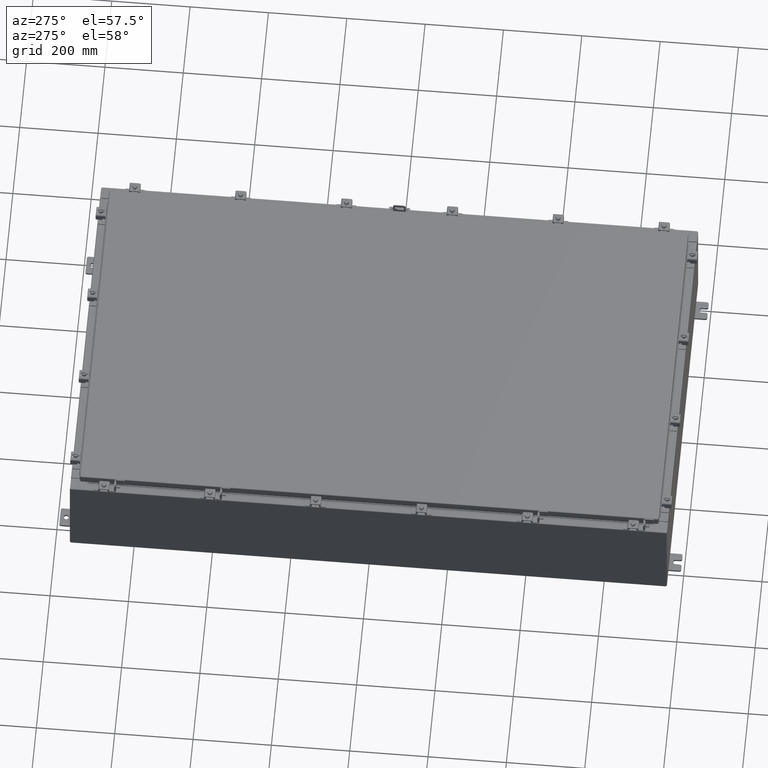
[diagram: clean part render]
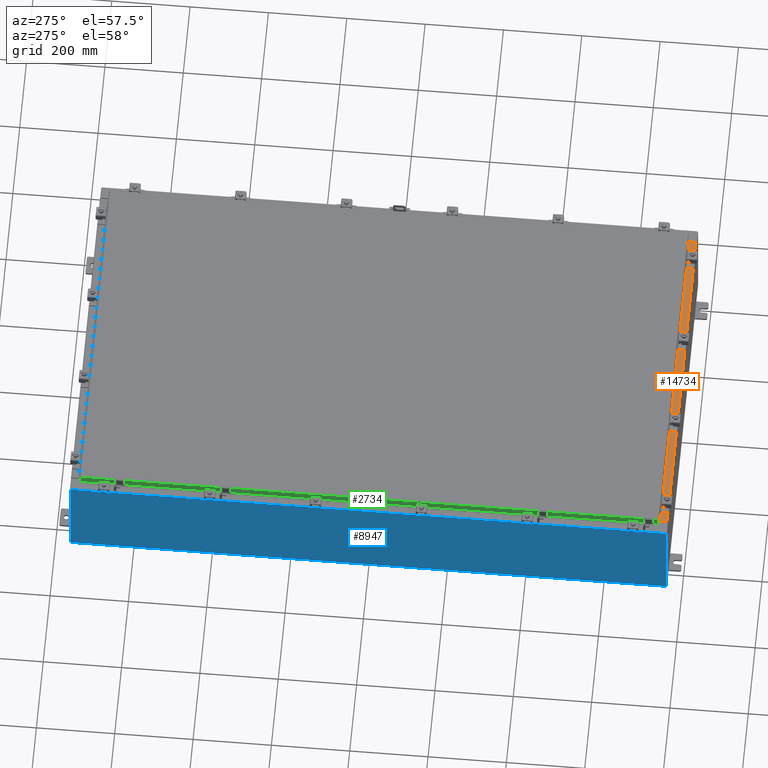
[diagram: same view with three faces highlighted in distinct colors, each labeled with its STEP entity id]
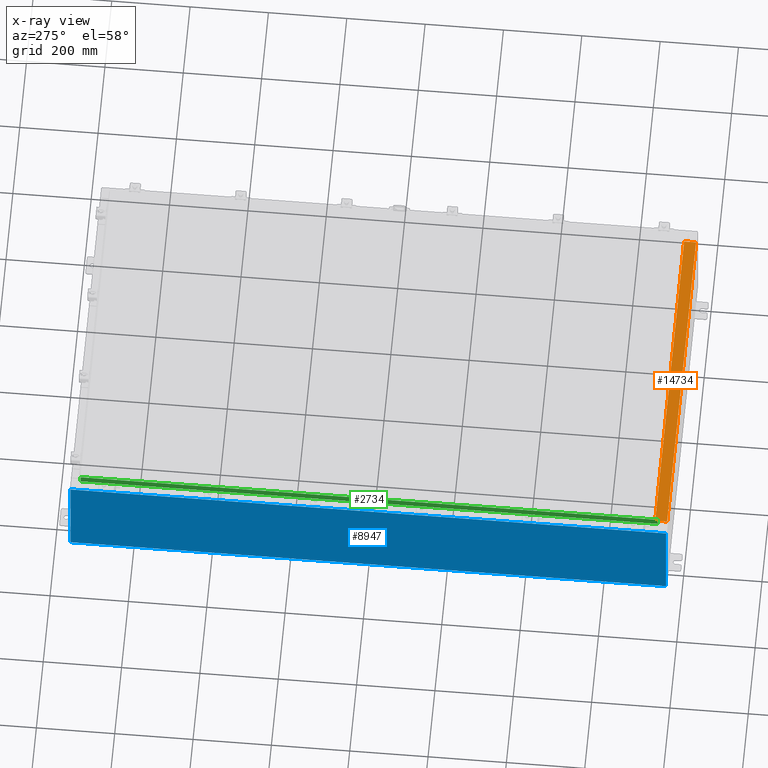
[diagram: x-ray of the same camera — body ghosted, the three highlighted faces saturated]
A machine part, auxiliary view with three faces highlighted in distinct colors.
The next image is the same camera in x-ray (body ghosted, the three faces saturated) — at least one of them is partly hidden behind the body in this view.
Their STEP definitions:

[orange] entity #14734 — the highlighted planar face has unit normal (-0, -0, 1).
#1194 = LINE ( 'NONE', #5495, #12490 ) ;
#3483 = ORIENTED_EDGE ( 'NONE', *, *, #18268, .F. ) ;
#4353 = EDGE_CURVE ( 'NONE', #15804, #15252, #25122, .T. ) ;
#5038 = ORIENTED_EDGE ( 'NONE', *, *, #4353, .T. ) ;
#5495 = CARTESIAN_POINT ( 'NONE',  ( 16.63720000000000000, -1.300299999999999800, 5.000000000000004400 ) ) ;
#6594 = DIRECTION ( 'NONE',  ( -1.000000000000000000, -3.284023746380717400E-017, 1.171208052571274300E-031 ) ) ;
#6736 = PLANE ( 'NONE',  #22687 ) ;
#6799 = EDGE_CURVE ( 'NONE', #27478, #21186, #26934, .T. ) ;
#8016 = EDGE_CURVE ( 'NONE', #21186, #15252, #23526, .T. ) ;
#8991 = ORIENTED_EDGE ( 'NONE', *, *, #6799, .F. ) ;
#10009 = CARTESIAN_POINT ( 'NONE',  ( -16.63720000000000000, -1.287299999999999200, 5.000000000000004400 ) ) ;
#11030 = DIRECTION ( 'NONE',  ( 0.0000000000000000000, -1.000000000000000000, 3.566381192773190000E-015 ) ) ;
#12180 = CARTESIAN_POINT ( 'NONE',  ( 16.63720000000000400, -0.08770000000000047200, 5.000000000000000000 ) ) ;
#12490 = VECTOR ( 'NONE', #16102, 39.37007874015748100 ) ;
#13811 = VECTOR ( 'NONE', #6594, 39.37007874015748100 ) ;
#14350 = FACE_OUTER_BOUND ( 'NONE', #21416, .T. ) ;
#14734 = ADVANCED_FACE ( 'NONE', ( #14350 ), #6736, .T. ) ;
#15252 = VERTEX_POINT ( 'NONE', #21127 ) ;
#15609 = VECTOR ( 'NONE', #19580, 39.37007874015748100 ) ;
#15804 = VERTEX_POINT ( 'NONE', #12180 ) ;
#16102 = DIRECTION ( 'NONE',  ( -0.0000000000000000000, -1.000000000000000000, 3.566381192773190000E-015 ) ) ;
#18268 = EDGE_CURVE ( 'NONE', #15804, #27478, #1194, .T. ) ;
#19327 = CARTESIAN_POINT ( 'NONE',  ( -16.63720000000000000, -0.07469999999999973900, 5.000000000000000000 ) ) ;
#19352 = CARTESIAN_POINT ( 'NONE',  ( 2.880088825576501100E-018, -0.08770000000000081900, 5.000000000000000000 ) ) ;
#19480 = CARTESIAN_POINT ( 'NONE',  ( 16.63720000000000400, -1.287299999999999900, 5.000000000000002700 ) ) ;
#19580 = DIRECTION ( 'NONE',  ( -1.000000000000000000, 0.0000000000000000000, 0.0000000000000000000 ) ) ;
#21127 = CARTESIAN_POINT ( 'NONE',  ( -16.63720000000000000, -0.08770000000000081900, 5.000000000000000000 ) ) ;
#21186 = VERTEX_POINT ( 'NONE', #10009 ) ;
#21416 = EDGE_LOOP ( 'NONE', ( #23521, #8991, #3483, #5038 ) ) ;
#21633 = CARTESIAN_POINT ( 'NONE',  ( 0.0000000000000000000, 1.782631094477737600E-014, 5.000000000000000000 ) ) ;
#22175 = CARTESIAN_POINT ( 'NONE',  ( 16.63720000000000000, -1.287299999999999900, 5.000000000000004400 ) ) ;
#22687 = AXIS2_PLACEMENT_3D ( 'NONE', #21633, #23771, #11030 ) ;
#22851 = VECTOR ( 'NONE', #25728, 39.37007874015748100 ) ;
#23521 = ORIENTED_EDGE ( 'NONE', *, *, #8016, .F. ) ;
#23526 = LINE ( 'NONE', #19327, #22851 ) ;
#23771 = DIRECTION ( 'NONE',  ( 0.0000000000000000000, 3.566381192773190000E-015, 1.000000000000000000 ) ) ;
#25122 = LINE ( 'NONE', #19352, #13811 ) ;
#25728 = DIRECTION ( 'NONE',  ( -0.0000000000000000000, 1.000000000000000000, -3.566381192773190000E-015 ) ) ;
#26934 = LINE ( 'NONE', #19480, #15609 ) ;
#27478 = VERTEX_POINT ( 'NONE', #22175 ) ;

[blue] entity #8947 — the highlighted planar face has unit normal (1, 0, 0).
#66 = DIRECTION ( 'NONE',  ( 0.0000000000000000000, 1.000000000000000000, 0.0000000000000000000 ) ) ;
#1041 = VECTOR ( 'NONE', #17648, 39.37007874015748100 ) ;
#3089 = LINE ( 'NONE', #13793, #25036 ) ;
#3859 = VERTEX_POINT ( 'NONE', #17902 ) ;
#6020 = ORIENTED_EDGE ( 'NONE', *, *, #14792, .T. ) ;
#6082 = EDGE_LOOP ( 'NONE', ( #13232, #14996, #26472, #6020 ) ) ;
#6417 = VERTEX_POINT ( 'NONE', #24782 ) ;
#6667 = LINE ( 'NONE', #21814, #1041 ) ;
#7457 = DIRECTION ( 'NONE',  ( 3.523082860860888200E-015, 0.0000000000000000000, -1.000000000000000000 ) ) ;
#8696 = VECTOR ( 'NONE', #66, 39.37007874015748100 ) ;
#8947 = ADVANCED_FACE ( 'NONE', ( #27491 ), #25060, .F. ) ;
#11063 = LINE ( 'NONE', #19800, #16061 ) ;
#11069 = VERTEX_POINT ( 'NONE', #25602 ) ;
#12326 = DIRECTION ( 'NONE',  ( 1.000000000000000000, 0.0000000000000000000, 3.523082860860887800E-015 ) ) ;
#12681 = CARTESIAN_POINT ( 'NONE',  ( -18.00000000000003900, 29.92529999999998900, 9.837599999999998300 ) ) ;
#12738 = EDGE_CURVE ( 'NONE', #6417, #13260, #23694, .T. ) ;
#12807 = CARTESIAN_POINT ( 'NONE',  ( -18.00000000000003900, -29.92530000000001800, 9.837599999999998300 ) ) ;
#12952 = EDGE_CURVE ( 'NONE', #3859, #11069, #11063, .T. ) ;
#13232 = ORIENTED_EDGE ( 'NONE', *, *, #12738, .T. ) ;
#13260 = VERTEX_POINT ( 'NONE', #12681 ) ;
#13603 = EDGE_CURVE ( 'NONE', #13260, #11069, #3089, .T. ) ;
#13793 = CARTESIAN_POINT ( 'NONE',  ( -18.00000000000000400, 29.92529999999998900, -6.367630515150756800E-014 ) ) ;
#14792 = EDGE_CURVE ( 'NONE', #3859, #6417, #6667, .T. ) ;
#14996 = ORIENTED_EDGE ( 'NONE', *, *, #13603, .T. ) ;
#16061 = VECTOR ( 'NONE', #21930, 39.37007874015748100 ) ;
#16524 = CARTESIAN_POINT ( 'NONE',  ( -18.00000000000000400, 0.0000000000000000000, -6.367630515150756800E-014 ) ) ;
#17648 = DIRECTION ( 'NONE',  ( -3.523082860860888200E-015, 0.0000000000000000000, 1.000000000000000000 ) ) ;
#17902 = CARTESIAN_POINT ( 'NONE',  ( -18.00000000000000400, -29.92530000000001100, 0.01299999999999984700 ) ) ;
#19800 = CARTESIAN_POINT ( 'NONE',  ( -18.00000000000000400, 29.92529999999998900, 0.01299999999999984700 ) ) ;
#20984 = AXIS2_PLACEMENT_3D ( 'NONE', #16524, #12326, #27233 ) ;
#21814 = CARTESIAN_POINT ( 'NONE',  ( -18.00000000000000400, -29.92530000000001100, -6.367630515150756800E-014 ) ) ;
#21930 = DIRECTION ( 'NONE',  ( -0.0000000000000000000, 1.000000000000000000, -0.0000000000000000000 ) ) ;
#23694 = LINE ( 'NONE', #12807, #8696 ) ;
#24782 = CARTESIAN_POINT ( 'NONE',  ( -18.00000000000003900, -29.92530000000001100, 9.837599999999998300 ) ) ;
#25036 = VECTOR ( 'NONE', #7457, 39.37007874015748100 ) ;
#25060 = PLANE ( 'NONE',  #20984 ) ;
#25602 = CARTESIAN_POINT ( 'NONE',  ( -18.00000000000000400, 29.92529999999998600, 0.01299999999999984300 ) ) ;
#26472 = ORIENTED_EDGE ( 'NONE', *, *, #12952, .F. ) ;
#27233 = DIRECTION ( 'NONE',  ( 3.523082860860887800E-015, 0.0000000000000000000, -1.000000000000000000 ) ) ;
#27491 = FACE_OUTER_BOUND ( 'NONE', #6082, .T. ) ;

[green] entity #2734 — the highlighted planar face has unit normal (1, 0, -0).
#172 = CARTESIAN_POINT ( 'NONE',  ( -17.07799999999999600, 29.00515786437626500, -0.08770000000000007000 ) ) ;
#608 = ORIENTED_EDGE ( 'NONE', *, *, #10830, .T. ) ;
#1378 = ORIENTED_EDGE ( 'NONE', *, *, #20042, .F. ) ;
#1742 = CARTESIAN_POINT ( 'NONE',  ( -17.07799999999998500, -28.25515786437626500, -0.8500000000000017500 ) ) ;
#2088 = DIRECTION ( 'NONE',  ( 4.379057701015054300E-047, 1.000000000000000000, 1.197190551977018000E-016 ) ) ;
#2734 = ADVANCED_FACE ( 'NONE', ( #8904 ), #3248, .F. ) ;
#3248 = PLANE ( 'NONE',  #19890 ) ;
#3564 = DIRECTION ( 'NONE',  ( 3.374737631835139200E-031, -1.000000000000000000, -9.198750492177080800E-046 ) ) ;
#3722 = CARTESIAN_POINT ( 'NONE',  ( -17.07799999999999900, -29.09400000000000500, -0.8499999999999996400 ) ) ;
#3755 = VECTOR ( 'NONE', #23170, 39.37007874015748100 ) ;
#4781 = EDGE_LOOP ( 'NONE', ( #4931, #608, #21760, #21463, #1378, #18220 ) ) ;
#4803 = VERTEX_POINT ( 'NONE', #1742 ) ;
#4931 = ORIENTED_EDGE ( 'NONE', *, *, #13744, .F. ) ;
#5307 = CARTESIAN_POINT ( 'NONE',  ( -17.07799999999999600, -5.763376927648048400E-030, 4.840166239667793400E-014 ) ) ;
#5415 = VECTOR ( 'NONE', #3564, 39.37007874015748100 ) ;
#7506 = DIRECTION ( 'NONE',  ( -2.818880942772360100E-015, 0.0000000000000000000, -1.000000000000000000 ) ) ;
#8387 = CARTESIAN_POINT ( 'NONE',  ( -17.07799999999999900, -29.09400000000000500, -0.8499999999999996400 ) ) ;
#8724 = LINE ( 'NONE', #21027, #3755 ) ;
#8904 = FACE_OUTER_BOUND ( 'NONE', #4781, .T. ) ;
#10472 = VERTEX_POINT ( 'NONE', #172 ) ;
#10830 = EDGE_CURVE ( 'NONE', #10472, #26375, #15417, .T. ) ;
#11037 = EDGE_CURVE ( 'NONE', #26831, #26375, #17066, .T. ) ;
#11246 = EDGE_CURVE ( 'NONE', #4803, #26831, #19391, .T. ) ;
#11414 = VECTOR ( 'NONE', #2088, 39.37007874015748100 ) ;
#11864 = CARTESIAN_POINT ( 'NONE',  ( -17.07799999999999600, 29.00515786437626500, 2.509435972240157400E-013 ) ) ;
#12048 = EDGE_CURVE ( 'NONE', #13503, #23715, #8724, .T. ) ;
#12415 = LINE ( 'NONE', #3722, #18097 ) ;
#13065 = VECTOR ( 'NONE', #22923, 39.37007874015748100 ) ;
#13503 = VERTEX_POINT ( 'NONE', #24045 ) ;
#13744 = EDGE_CURVE ( 'NONE', #10472, #13503, #17401, .T. ) ;
#15417 = LINE ( 'NONE', #11864, #21745 ) ;
#17066 = LINE ( 'NONE', #8387, #11414 ) ;
#17401 = LINE ( 'NONE', #22711, #5415 ) ;
#18097 = VECTOR ( 'NONE', #18599, 39.37007874015748100 ) ;
#18220 = ORIENTED_EDGE ( 'NONE', *, *, #12048, .F. ) ;
#18599 = DIRECTION ( 'NONE',  ( 4.379057701015054300E-047, 1.000000000000000000, 1.197190551977018000E-016 ) ) ;
#18964 = CARTESIAN_POINT ( 'NONE',  ( -17.07799999999999900, 29.00515786437627200, -0.8499999999999927600 ) ) ;
#19391 = LINE ( 'NONE', #20791, #13065 ) ;
#19483 = CARTESIAN_POINT ( 'NONE',  ( -17.07799999999999900, -29.00515786437626500, -0.8499999999999996400 ) ) ;
#19890 = AXIS2_PLACEMENT_3D ( 'NONE', #5307, #20276, #7506 ) ;
#20042 = EDGE_CURVE ( 'NONE', #23715, #4803, #12415, .T. ) ;
#20276 = DIRECTION ( 'NONE',  ( 1.000000000000000000, 3.374737631835138300E-031, -2.818880942772360100E-015 ) ) ;
#20791 = CARTESIAN_POINT ( 'NONE',  ( -17.07799999999998500, -28.25515786437626500, -0.8500000000000017500 ) ) ;
#21027 = CARTESIAN_POINT ( 'NONE',  ( -17.07799999999999600, -29.00515786437627200, -0.07469999999999978000 ) ) ;
#21463 = ORIENTED_EDGE ( 'NONE', *, *, #11246, .F. ) ;
#21745 = VECTOR ( 'NONE', #26771, 39.37007874015748100 ) ;
#21760 = ORIENTED_EDGE ( 'NONE', *, *, #11037, .F. ) ;
#22473 = CARTESIAN_POINT ( 'NONE',  ( -17.07799999999998500, 28.25515786437626500, -0.8500000000000017500 ) ) ;
#22711 = CARTESIAN_POINT ( 'NONE',  ( -17.07799999999999600, -29.09400000000000500, -0.08770000000000007000 ) ) ;
#22923 = DIRECTION ( 'NONE',  ( -0.0000000000000000000, 1.000000000000000000, -0.0000000000000000000 ) ) ;
#23170 = DIRECTION ( 'NONE',  ( -2.818880942772360100E-015, 6.982962677686265900E-015, -1.000000000000000000 ) ) ;
#23715 = VERTEX_POINT ( 'NONE', #19483 ) ;
#24045 = CARTESIAN_POINT ( 'NONE',  ( -17.07799999999999600, -29.00515786437627600, -0.08770000000000007000 ) ) ;
#26375 = VERTEX_POINT ( 'NONE', #18964 ) ;
#26771 = DIRECTION ( 'NONE',  ( -2.818880942772360100E-015, 6.982962677686265900E-015, -1.000000000000000000 ) ) ;
#26831 = VERTEX_POINT ( 'NONE', #22473 ) ;